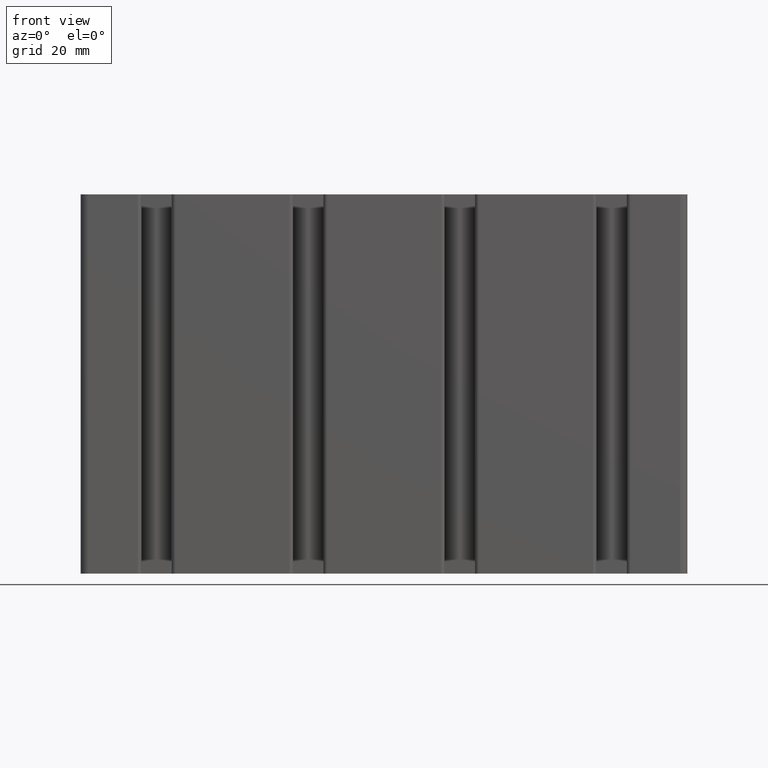
[diagram: clean part render]
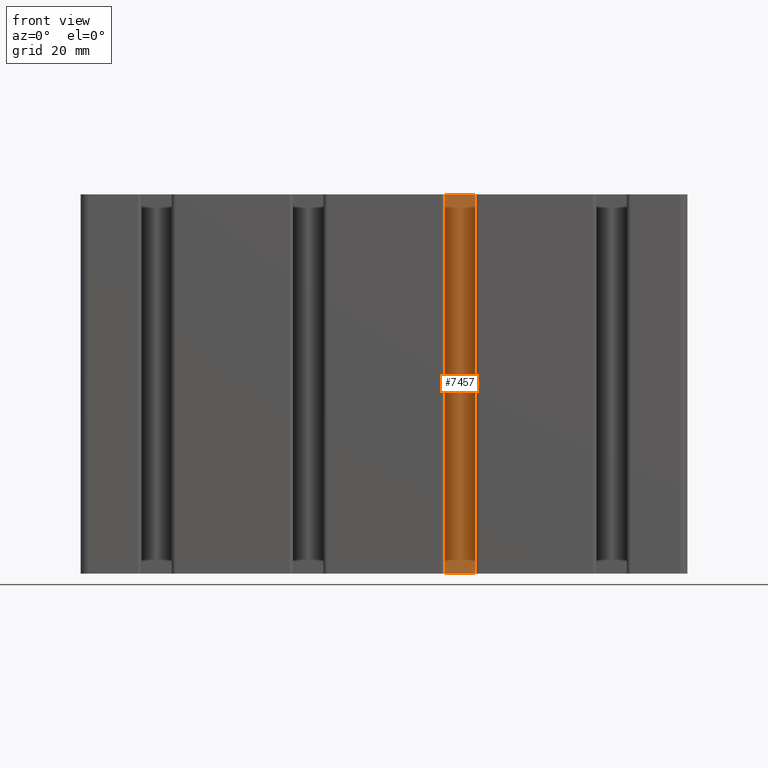
[diagram: same view with one face highlighted and labeled with its STEP entity id]
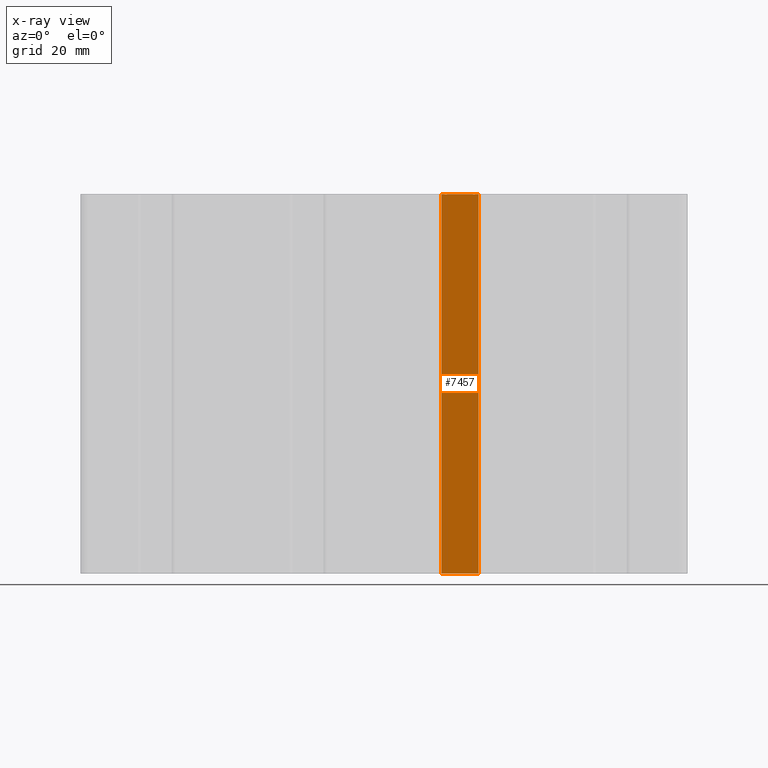
[diagram: x-ray of the same camera — body ghosted, the highlighted face saturated]
A machine part, front view. The second image highlights one B-rep face of the part: STEP entity #7457.
The next image is the same camera in x-ray: the body ghosted, the highlighted face saturated — about 0% of this face is hidden behind the body in this view.
In plain terms, the highlighted planar face has unit normal (-0, 1, 0).
Its self-contained STEP definition (entity closure, byte-faithful):
#165=PLANE('',#8077);
#483=FACE_OUTER_BOUND('',#863,.T.);
#863=EDGE_LOOP('',(#5757,#5758,#5759,#5760));
#1517=LINE('',#12056,#2281);
#1518=LINE('',#12059,#2282);
#1519=LINE('',#12061,#2283);
#1520=LINE('',#12062,#2284);
#2281=VECTOR('',#9797,100.);
#2282=VECTOR('',#9800,9.80761184457488);
#2283=VECTOR('',#9801,9.80761184457488);
#2284=VECTOR('',#9802,100.);
#3409=VERTEX_POINT('',#12052);
#3410=VERTEX_POINT('',#12054);
#3411=VERTEX_POINT('',#12058);
#3412=VERTEX_POINT('',#12060);
#4397=EDGE_CURVE('',#3410,#3409,#1517,.T.);
#4398=EDGE_CURVE('',#3409,#3411,#1518,.T.);
#4399=EDGE_CURVE('',#3412,#3410,#1519,.T.);
#4400=EDGE_CURVE('',#3412,#3411,#1520,.T.);
#5757=ORIENTED_EDGE('',*,*,#4398,.F.);
#5758=ORIENTED_EDGE('',*,*,#4397,.F.);
#5759=ORIENTED_EDGE('',*,*,#4399,.F.);
#5760=ORIENTED_EDGE('',*,*,#4400,.T.);
#7457=ADVANCED_FACE('',(#483),#165,.F.);
#8077=AXIS2_PLACEMENT_3D('',#12057,#9798,#9799);
#9797=DIRECTION('',(0.,0.,1.));
#9798=DIRECTION('center_axis',(-2.83000347643061E-15,1.,0.));
#9799=DIRECTION('ref_axis',(-1.,-2.8421709430404E-15,0.));
#9800=DIRECTION('',(1.,2.83000347643061E-15,0.));
#9801=DIRECTION('',(-1.,-2.83000347643061E-15,0.));
#9802=DIRECTION('',(0.,0.,1.));
#12052=CARTESIAN_POINT('',(15.0961940777126,-7.50000000000005,100.));
#12054=CARTESIAN_POINT('',(15.0961940777126,-7.50000000000005,0.));
#12056=CARTESIAN_POINT('',(15.0961940777126,-7.50000000000005,0.));
#12057=CARTESIAN_POINT('Origin',(24.9038059222874,-7.50000000000002,0.));
#12058=CARTESIAN_POINT('',(24.9038059222874,-7.50000000000002,100.));
#12059=CARTESIAN_POINT('',(12.4519029611437,-7.50000000000006,100.));
#12060=CARTESIAN_POINT('',(24.9038059222874,-7.50000000000002,0.));
#12061=CARTESIAN_POINT('',(12.4519029611437,-7.50000000000006,0.));
#12062=CARTESIAN_POINT('',(24.9038059222874,-7.50000000000002,0.));